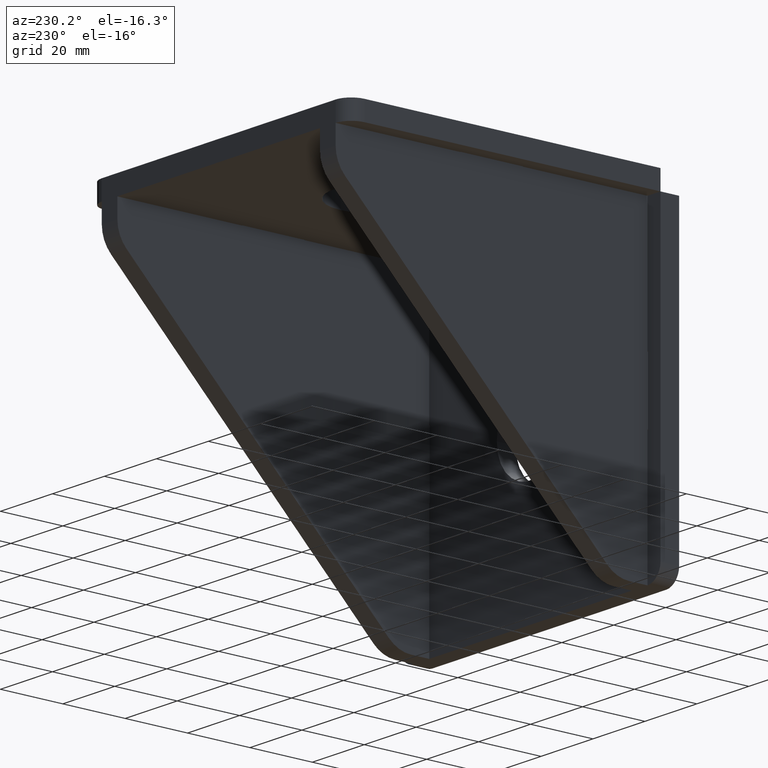
[diagram: clean part render]
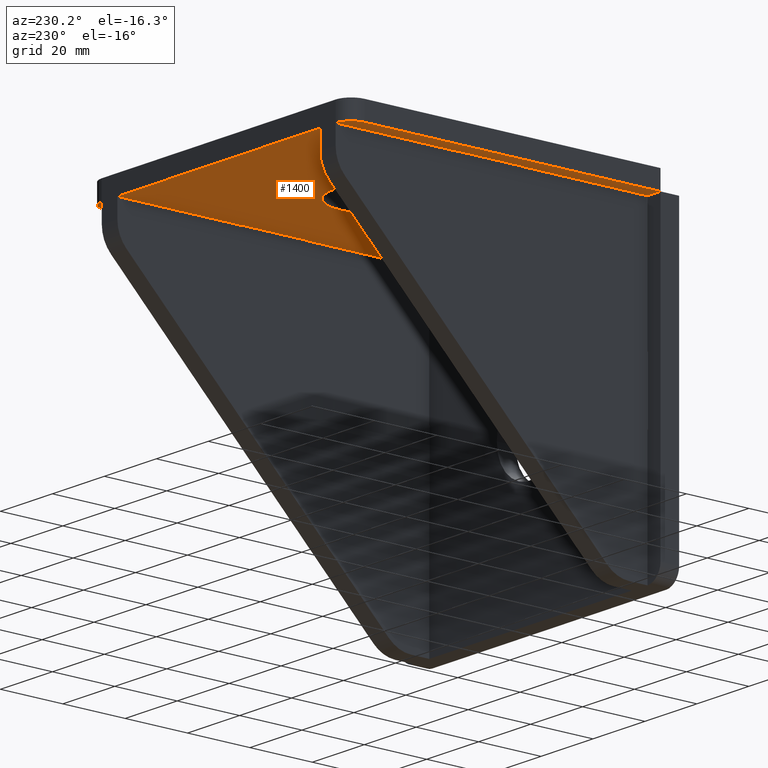
[diagram: same view with one face highlighted and labeled with its STEP entity id]
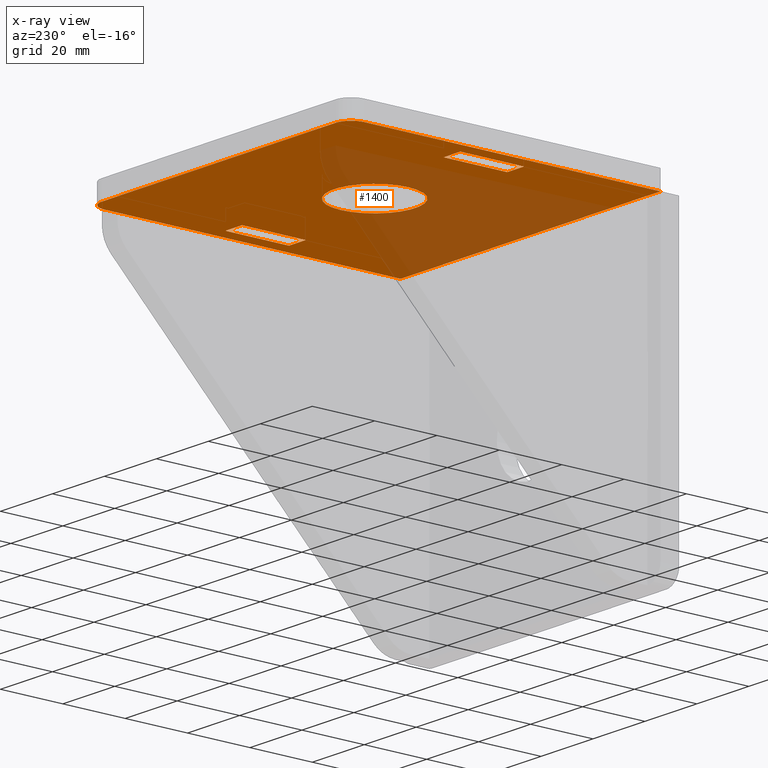
[diagram: x-ray of the same camera — body ghosted, the highlighted face saturated]
A machine part, auxiliary view. The second image highlights one B-rep face of the part: STEP entity #1400.
The next image is the same camera in x-ray: the body ghosted, the highlighted face saturated — about 39% of this face is hidden behind the body in this view.
In plain terms, the highlighted planar face has unit normal (0, 0, -1).
Its self-contained STEP definition (entity closure, byte-faithful):
#1 = CIRCLE ( 'NONE', #1510, 13.00000000000000178 ) ;
#7 = EDGE_LOOP ( 'NONE', ( #540, #630 ) ) ;
#14 = LINE ( 'NONE', #1364, #244 ) ;
#20 = VERTEX_POINT ( 'NONE', #640 ) ;
#37 = CARTESIAN_POINT ( 'NONE',  ( 45.20000000000081997, -10.20000000000020890, -6.000000000000228262 ) ) ;
#56 = ORIENTED_EDGE ( 'NONE', *, *, #96, .T. ) ;
#63 = EDGE_CURVE ( 'NONE', #428, #393, #1505, .T. ) ;
#88 = CARTESIAN_POINT ( 'NONE',  ( -38.79999999999939320, -10.19999999999976481, -5.999999999999672262 ) ) ;
#90 = ORIENTED_EDGE ( 'NONE', *, *, #1600, .F. ) ;
#92 = ORIENTED_EDGE ( 'NONE', *, *, #1051, .T. ) ;
#96 = EDGE_CURVE ( 'NONE', #341, #573, #787, .T. ) ;
#105 = EDGE_CURVE ( 'NONE', #1596, #488, #1, .T. ) ;
#125 = DIRECTION ( 'NONE',  ( 1.805559322863035323E-34, 1.000000000000000000, -1.232595164407830946E-32 ) ) ;
#128 = EDGE_CURVE ( 'NONE', #1167, #315, #746, .T. ) ;
#141 = VECTOR ( 'NONE', #1478, 1000.000000000000000 ) ;
#165 = LINE ( 'NONE', #280, #1355 ) ;
#189 = AXIS2_PLACEMENT_3D ( 'NONE', #1489, #864, #1242 ) ;
#214 = ORIENTED_EDGE ( 'NONE', *, *, #1372, .F. ) ;
#231 = DIRECTION ( 'NONE',  ( 1.805559322863035323E-34, 1.000000000000000000, -1.232595164407830946E-32 ) ) ;
#243 = CIRCLE ( 'NONE', #189, 13.00000000000000178 ) ;
#244 = VECTOR ( 'NONE', #753, 1000.000000000000000 ) ;
#262 = DIRECTION ( 'NONE',  ( 0.000000000000000000, 0.000000000000000000, 1.000000000000000000 ) ) ;
#268 = VECTOR ( 'NONE', #689, 1000.000000000000000 ) ;
#269 = EDGE_CURVE ( 'NONE', #552, #501, #165, .T. ) ;
#280 = CARTESIAN_POINT ( 'NONE',  ( 38.80000000000028137, 2.220446049250313081E-13, -6.000000000000560441 ) ) ;
#301 = EDGE_CURVE ( 'NONE', #587, #573, #1049, .T. ) ;
#308 = VERTEX_POINT ( 'NONE', #806 ) ;
#315 = VERTEX_POINT ( 'NONE', #782 ) ;
#338 = ORIENTED_EDGE ( 'NONE', *, *, #466, .F. ) ;
#341 = VERTEX_POINT ( 'NONE', #839 ) ;
#347 = CARTESIAN_POINT ( 'NONE',  ( 8.131516293641283255E-17, 0.000000000000000000, -6.000000000000227374 ) ) ;
#349 = ORIENTED_EDGE ( 'NONE', *, *, #269, .T. ) ;
#353 = LINE ( 'NONE', #1095, #505 ) ;
#363 = DIRECTION ( 'NONE',  ( 1.540743955509788682E-33, 2.781904613015565710E-67, -1.000000000000000000 ) ) ;
#383 = CARTESIAN_POINT ( 'NONE',  ( 5.559246639419423985E-14, 10.19999999999998685, -6.000000000000227374 ) ) ;
#393 = VERTEX_POINT ( 'NONE', #1585 ) ;
#394 = DIRECTION ( 'NONE',  ( -1.000000000000000000, 0.000000000000000000, 0.000000000000000000 ) ) ;
#400 = VERTEX_POINT ( 'NONE', #88 ) ;
#409 = ORIENTED_EDGE ( 'NONE', *, *, #1213, .T. ) ;
#428 = VERTEX_POINT ( 'NONE', #1214 ) ;
#432 = CARTESIAN_POINT ( 'NONE',  ( -50.00000000000027001, 49.99999999999982236, -6.000000000001226574 ) ) ;
#448 = AXIS2_PLACEMENT_3D ( 'NONE', #1484, #494, #1477 ) ;
#453 = VECTOR ( 'NONE', #1572, 1000.000000000000000 ) ;
#466 = EDGE_CURVE ( 'NONE', #308, #1517, #1468, .T. ) ;
#471 = DIRECTION ( 'NONE',  ( -1.000000000000000000, -1.805559322863033398E-34, -1.540743955509788682E-33 ) ) ;
#478 = LINE ( 'NONE', #973, #141 ) ;
#479 = VECTOR ( 'NONE', #231, 1000.000000000000000 ) ;
#481 = AXIS2_PLACEMENT_3D ( 'NONE', #520, #1008, #394 ) ;
#488 = VERTEX_POINT ( 'NONE', #1375 ) ;
#494 = DIRECTION ( 'NONE',  ( 0.000000000000000000, 0.000000000000000000, -1.000000000000000000 ) ) ;
#495 = CARTESIAN_POINT ( 'NONE',  ( -13.00000000000000178, 1.592040838891559293E-15, -6.000000000000227374 ) ) ;
#498 = EDGE_CURVE ( 'NONE', #488, #1596, #243, .T. ) ;
#501 = VERTEX_POINT ( 'NONE', #1131 ) ;
#505 = VECTOR ( 'NONE', #725, 1000.000000000000000 ) ;
#507 = CARTESIAN_POINT ( 'NONE',  ( -49.99999999999965894, -50.00000000000071054, -5.999999999999561240 ) ) ;
#520 = CARTESIAN_POINT ( 'NONE',  ( 45.00000000000070344, 45.00000000000026290, -6.000000000001004530 ) ) ;
#540 = ORIENTED_EDGE ( 'NONE', *, *, #498, .T. ) ;
#547 = EDGE_LOOP ( 'NONE', ( #1112, #92, #338, #214, #90, #56 ) ) ;
#552 = VERTEX_POINT ( 'NONE', #1482 ) ;
#573 = VERTEX_POINT ( 'NONE', #1349 ) ;
#587 = VERTEX_POINT ( 'NONE', #757 ) ;
#588 = LINE ( 'NONE', #1327, #713 ) ;
#630 = ORIENTED_EDGE ( 'NONE', *, *, #105, .T. ) ;
#640 = CARTESIAN_POINT ( 'NONE',  ( -45.19999999999973994, -10.20000000000031903, -6.000000000000782485 ) ) ;
#670 = ORIENTED_EDGE ( 'NONE', *, *, #63, .T. ) ;
#689 = DIRECTION ( 'NONE',  ( 1.000000000000000000, 1.805559322863033398E-34, 1.540743955509788682E-33 ) ) ;
#699 = LINE ( 'NONE', #1556, #453 ) ;
#702 = ORIENTED_EDGE ( 'NONE', *, *, #1544, .T. ) ;
#712 = ORIENTED_EDGE ( 'NONE', *, *, #814, .T. ) ;
#713 = VECTOR ( 'NONE', #979, 1000.000000000000000 ) ;
#723 = FACE_OUTER_BOUND ( 'NONE', #547, .T. ) ;
#725 = DIRECTION ( 'NONE',  ( -1.805559322863035323E-34, -1.000000000000000000, 1.232595164407830946E-32 ) ) ;
#746 = LINE ( 'NONE', #1238, #1041 ) ;
#753 = DIRECTION ( 'NONE',  ( 1.000000000000000000, 1.805559322863033398E-34, 1.540743955509788682E-33 ) ) ;
#757 = CARTESIAN_POINT ( 'NONE',  ( 45.00000000000023448, 50.00000000000059686, -6.000000000000671463 ) ) ;
#759 = DIRECTION ( 'NONE',  ( 1.000000000000000000, 1.805559322863033398E-34, 0.000000000000000000 ) ) ;
#761 = VECTOR ( 'NONE', #1115, 1000.000000000000000 ) ;
#782 = CARTESIAN_POINT ( 'NONE',  ( 45.20000000000018758, 10.20000000000043094, -6.000000000000116351 ) ) ;
#787 = CIRCLE ( 'NONE', #448, 4.999999999999997335 ) ;
#806 = CARTESIAN_POINT ( 'NONE',  ( 50.00000000000065370, -50.00000000000027001, -6.000000000000338396 ) ) ;
#814 = EDGE_CURVE ( 'NONE', #315, #552, #699, .T. ) ;
#839 = CARTESIAN_POINT ( 'NONE',  ( -50.00000000000009948, 45.00000000000070344, -5.999999999999561240 ) ) ;
#845 = FACE_BOUND ( 'NONE', #1106, .T. ) ;
#849 = CARTESIAN_POINT ( 'NONE',  ( 50.00000000000065370, -50.00000000000027001, -6.000000000000338396 ) ) ;
#864 = DIRECTION ( 'NONE',  ( 0.000000000000000000, 0.000000000000000000, 1.000000000000000000 ) ) ;
#973 = CARTESIAN_POINT ( 'NONE',  ( -38.79999999999994742, -1.110223024625156540E-13, -5.999999999999783284 ) ) ;
#979 = DIRECTION ( 'NONE',  ( 1.000000000000000000, 1.805559322863033398E-34, 1.540743955509788682E-33 ) ) ;
#996 = AXIS2_PLACEMENT_3D ( 'NONE', #347, #363, #471 ) ;
#1008 = DIRECTION ( 'NONE',  ( 0.000000000000000000, 0.000000000000000000, -1.000000000000000000 ) ) ;
#1017 = VECTOR ( 'NONE', #1116, 1000.000000000000000 ) ;
#1041 = VECTOR ( 'NONE', #125, 1000.000000000000000 ) ;
#1049 = LINE ( 'NONE', #432, #1276 ) ;
#1051 = EDGE_CURVE ( 'NONE', #587, #1517, #1127, .T. ) ;
#1066 = PLANE ( 'NONE',  #996 ) ;
#1078 = CARTESIAN_POINT ( 'NONE',  ( -49.99999999999965894, -50.00000000000071054, -5.999999999999561240 ) ) ;
#1095 = CARTESIAN_POINT ( 'NONE',  ( -45.19999999999979678, -2.220446049250313081E-13, -5.999999999999783284 ) ) ;
#1106 = EDGE_LOOP ( 'NONE', ( #409, #1388, #712, #349 ) ) ;
#1112 = ORIENTED_EDGE ( 'NONE', *, *, #301, .F. ) ;
#1115 = DIRECTION ( 'NONE',  ( -1.000000000000000000, -1.805559322863033398E-34, -1.540743955509788682E-33 ) ) ;
#1116 = DIRECTION ( 'NONE',  ( -1.805559322863035323E-34, -1.000000000000000000, 1.232595164407830946E-32 ) ) ;
#1126 = LINE ( 'NONE', #507, #1017 ) ;
#1127 = CIRCLE ( 'NONE', #481, 4.999999999999997335 ) ;
#1131 = CARTESIAN_POINT ( 'NONE',  ( 38.80000000000000426, -10.19999999999998685, -5.999999999999894307 ) ) ;
#1150 = EDGE_CURVE ( 'NONE', #393, #20, #353, .T. ) ;
#1167 = VERTEX_POINT ( 'NONE', #37 ) ;
#1213 = EDGE_CURVE ( 'NONE', #501, #1167, #1545, .T. ) ;
#1214 = CARTESIAN_POINT ( 'NONE',  ( -38.79999999999939320, 10.19999999999998685, -5.999999999999784173 ) ) ;
#1238 = CARTESIAN_POINT ( 'NONE',  ( 45.20000000000032259, -1.110223024625156540E-13, -6.000000000000116351 ) ) ;
#1242 = DIRECTION ( 'NONE',  ( 1.000000000000000000, 1.805559322863033398E-34, 0.000000000000000000 ) ) ;
#1252 = CARTESIAN_POINT ( 'NONE',  ( 8.131516293641283255E-17, 0.000000000000000000, -6.000000000000227374 ) ) ;
#1276 = VECTOR ( 'NONE', #1425, 1000.000000000000000 ) ;
#1298 = ORIENTED_EDGE ( 'NONE', *, *, #1457, .T. ) ;
#1327 = CARTESIAN_POINT ( 'NONE',  ( -49.99999999999965894, -50.00000000000071054, -5.999999999999561240 ) ) ;
#1339 = FACE_BOUND ( 'NONE', #7, .T. ) ;
#1349 = CARTESIAN_POINT ( 'NONE',  ( -44.99999999999976552, 50.00000000000071054, -6.000000000001004530 ) ) ;
#1355 = VECTOR ( 'NONE', #1523, 1000.000000000000000 ) ;
#1364 = CARTESIAN_POINT ( 'NONE',  ( 2.776370713192255479E-13, -10.19999999999998685, -6.000000000000338396 ) ) ;
#1372 = EDGE_CURVE ( 'NONE', #1463, #308, #588, .T. ) ;
#1375 = CARTESIAN_POINT ( 'NONE',  ( 13.00000000000000178, 2.347227119721943696E-33, -6.000000000000227374 ) ) ;
#1388 = ORIENTED_EDGE ( 'NONE', *, *, #128, .T. ) ;
#1400 = ADVANCED_FACE ( 'NONE', ( #1339, #723, #845, #1582 ), #1066, .T. ) ;
#1425 = DIRECTION ( 'NONE',  ( -1.000000000000000000, -1.805559322863033398E-34, -1.540743955509788682E-33 ) ) ;
#1435 = CARTESIAN_POINT ( 'NONE',  ( 2.776370713192255479E-13, -10.19999999999998685, -6.000000000000338396 ) ) ;
#1449 = ORIENTED_EDGE ( 'NONE', *, *, #1150, .T. ) ;
#1457 = EDGE_CURVE ( 'NONE', #400, #428, #478, .T. ) ;
#1461 = CARTESIAN_POINT ( 'NONE',  ( 50.00000000000046185, 45.00000000000093081, -6.000000000000005329 ) ) ;
#1463 = VERTEX_POINT ( 'NONE', #1078 ) ;
#1468 = LINE ( 'NONE', #849, #479 ) ;
#1477 = DIRECTION ( 'NONE',  ( -1.000000000000000000, 0.000000000000000000, 0.000000000000000000 ) ) ;
#1478 = DIRECTION ( 'NONE',  ( 1.805559322863035323E-34, 1.000000000000000000, -1.232595164407830946E-32 ) ) ;
#1482 = CARTESIAN_POINT ( 'NONE',  ( 38.80000000000053006, 10.20000000000031903, -5.999999999999672262 ) ) ;
#1484 = CARTESIAN_POINT ( 'NONE',  ( -44.99999999999970868, 45.00000000000004263, -6.000000000000560441 ) ) ;
#1489 = CARTESIAN_POINT ( 'NONE',  ( 8.131516293641283255E-17, 0.000000000000000000, -6.000000000000227374 ) ) ;
#1505 = LINE ( 'NONE', #383, #761 ) ;
#1510 = AXIS2_PLACEMENT_3D ( 'NONE', #1252, #262, #759 ) ;
#1517 = VERTEX_POINT ( 'NONE', #1461 ) ;
#1523 = DIRECTION ( 'NONE',  ( -1.805559322863035323E-34, -1.000000000000000000, 1.232595164407830946E-32 ) ) ;
#1544 = EDGE_CURVE ( 'NONE', #20, #400, #14, .T. ) ;
#1545 = LINE ( 'NONE', #1435, #268 ) ;
#1556 = CARTESIAN_POINT ( 'NONE',  ( 5.559246639419423985E-14, 10.19999999999998685, -6.000000000000227374 ) ) ;
#1572 = DIRECTION ( 'NONE',  ( -1.000000000000000000, -1.805559322863033398E-34, -1.540743955509788682E-33 ) ) ;
#1582 = FACE_BOUND ( 'NONE', #1598, .T. ) ;
#1585 = CARTESIAN_POINT ( 'NONE',  ( -45.19999999999996021, 10.19999999999987494, -5.999999999999894307 ) ) ;
#1596 = VERTEX_POINT ( 'NONE', #495 ) ;
#1598 = EDGE_LOOP ( 'NONE', ( #702, #1298, #670, #1449 ) ) ;
#1600 = EDGE_CURVE ( 'NONE', #341, #1463, #1126, .T. ) ;